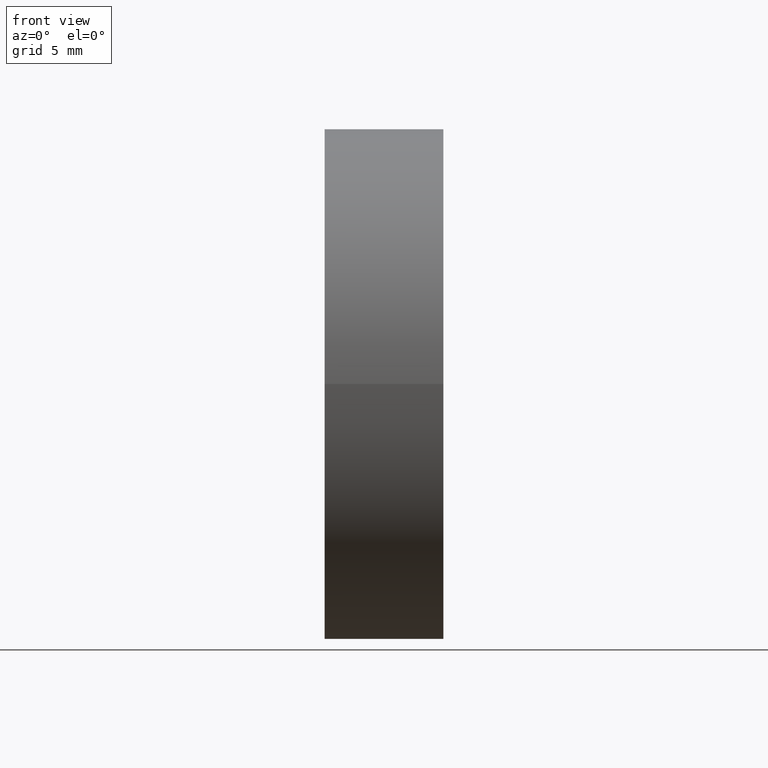
[diagram: clean part render]
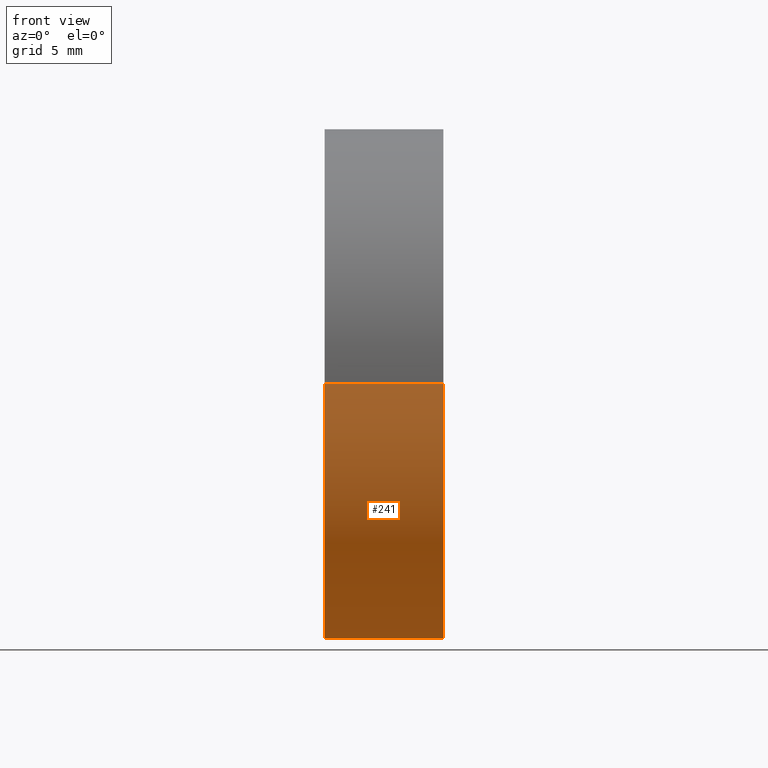
[diagram: same view with one face highlighted and labeled with its STEP entity id]
A machine part, front view. The second image highlights one B-rep face of the part: STEP entity #241.
In plain terms, the highlighted cylindrical surface (partial cylindrical patch) has radius 12.7 mm, axis along (1, 0, 0).
Its self-contained STEP definition (entity closure, byte-faithful):
#13 = VERTEX_POINT ( 'NONE', #329 ) ;
#36 = CARTESIAN_POINT ( 'NONE',  ( 1.110223024625159893E-15, -12.69999999999999929, 1.555301434917139813E-15 ) ) ;
#54 = AXIS2_PLACEMENT_3D ( 'NONE', #355, #301, #577 ) ;
#71 = ORIENTED_EDGE ( 'NONE', *, *, #644, .T. ) ;
#77 = ORIENTED_EDGE ( 'NONE', *, *, #539, .F. ) ;
#107 = DIRECTION ( 'NONE',  ( 1.000000000000000000, 0.000000000000000000, 0.000000000000000000 ) ) ;
#116 = EDGE_CURVE ( 'NONE', #422, #617, #140, .T. ) ;
#140 = LINE ( 'NONE', #36, #210 ) ;
#164 = CIRCLE ( 'NONE', #54, 12.69999999999999929 ) ;
#210 = VECTOR ( 'NONE', #243, 1000.000000000000000 ) ;
#211 = CARTESIAN_POINT ( 'NONE',  ( 1.110223024625159893E-15, 12.69999999999999929, 0.000000000000000000 ) ) ;
#212 = CARTESIAN_POINT ( 'NONE',  ( 1.110223024625159893E-15, 0.000000000000000000, 0.000000000000000000 ) ) ;
#217 = DIRECTION ( 'NONE',  ( 0.000000000000000000, 0.000000000000000000, -1.000000000000000000 ) ) ;
#237 = VERTEX_POINT ( 'NONE', #504 ) ;
#241 = ADVANCED_FACE ( 'NONE', ( #245 ), #663, .T. ) ;
#243 = DIRECTION ( 'NONE',  ( 1.000000000000000000, 0.000000000000000000, 0.000000000000000000 ) ) ;
#245 = FACE_OUTER_BOUND ( 'NONE', #286, .T. ) ;
#251 = CARTESIAN_POINT ( 'NONE',  ( -2.949999999999999734, -12.69999999999999929, 1.555301434917139813E-15 ) ) ;
#264 = DIRECTION ( 'NONE',  ( 1.000000000000000000, 0.000000000000000000, 0.000000000000000000 ) ) ;
#286 = EDGE_LOOP ( 'NONE', ( #653, #71, #530, #77 ) ) ;
#301 = DIRECTION ( 'NONE',  ( 1.000000000000000000, 0.000000000000000000, 0.000000000000000000 ) ) ;
#302 = DIRECTION ( 'NONE',  ( 0.000000000000000000, 1.000000000000000000, 0.000000000000000000 ) ) ;
#329 = CARTESIAN_POINT ( 'NONE',  ( -2.949999999999999734, 12.69999999999999929, 0.000000000000000000 ) ) ;
#338 = VECTOR ( 'NONE', #264, 1000.000000000000000 ) ;
#342 = CIRCLE ( 'NONE', #466, 12.69999999999999929 ) ;
#355 = CARTESIAN_POINT ( 'NONE',  ( -2.949999999999999734, 0.000000000000000000, 0.000000000000000000 ) ) ;
#418 = CARTESIAN_POINT ( 'NONE',  ( 2.949999999999999734, -12.69999999999999929, 1.555301434917139813E-15 ) ) ;
#422 = VERTEX_POINT ( 'NONE', #251 ) ;
#455 = DIRECTION ( 'NONE',  ( 1.000000000000000000, 0.000000000000000000, 0.000000000000000000 ) ) ;
#466 = AXIS2_PLACEMENT_3D ( 'NONE', #514, #107, #217 ) ;
#504 = CARTESIAN_POINT ( 'NONE',  ( 2.949999999999999734, 12.69999999999999929, 0.000000000000000000 ) ) ;
#514 = CARTESIAN_POINT ( 'NONE',  ( 2.949999999999999734, 0.000000000000000000, 0.000000000000000000 ) ) ;
#524 = LINE ( 'NONE', #211, #338 ) ;
#530 = ORIENTED_EDGE ( 'NONE', *, *, #664, .T. ) ;
#539 = EDGE_CURVE ( 'NONE', #617, #237, #342, .T. ) ;
#577 = DIRECTION ( 'NONE',  ( 0.000000000000000000, 0.000000000000000000, -1.000000000000000000 ) ) ;
#617 = VERTEX_POINT ( 'NONE', #418 ) ;
#618 = AXIS2_PLACEMENT_3D ( 'NONE', #212, #455, #302 ) ;
#644 = EDGE_CURVE ( 'NONE', #422, #13, #164, .T. ) ;
#653 = ORIENTED_EDGE ( 'NONE', *, *, #116, .F. ) ;
#663 = CYLINDRICAL_SURFACE ( 'NONE', #618, 12.69999999999999929 ) ;
#664 = EDGE_CURVE ( 'NONE', #13, #237, #524, .T. ) ;